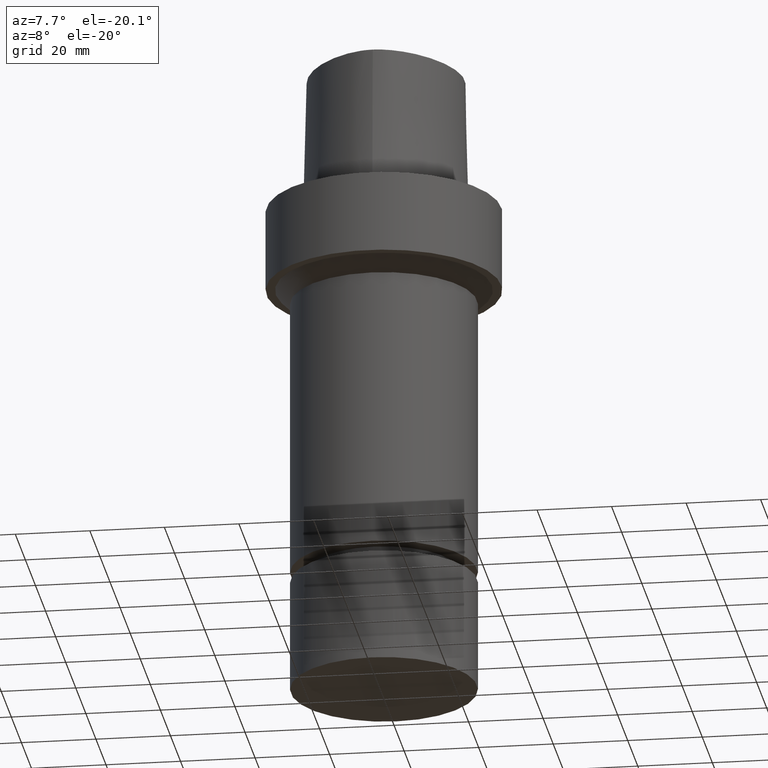
[diagram: clean part render]
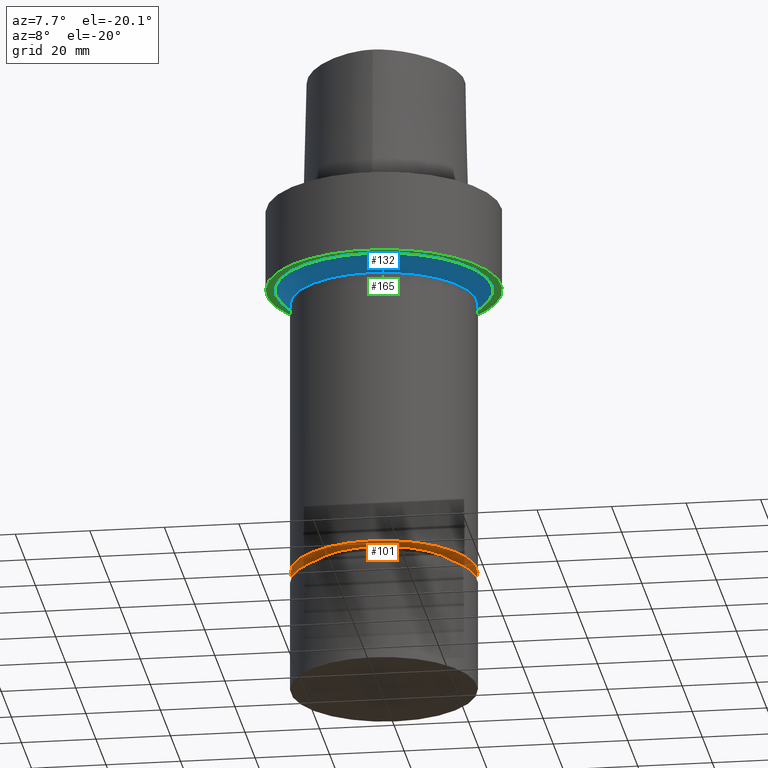
[diagram: same view with three faces highlighted in distinct colors, each labeled with its STEP entity id]
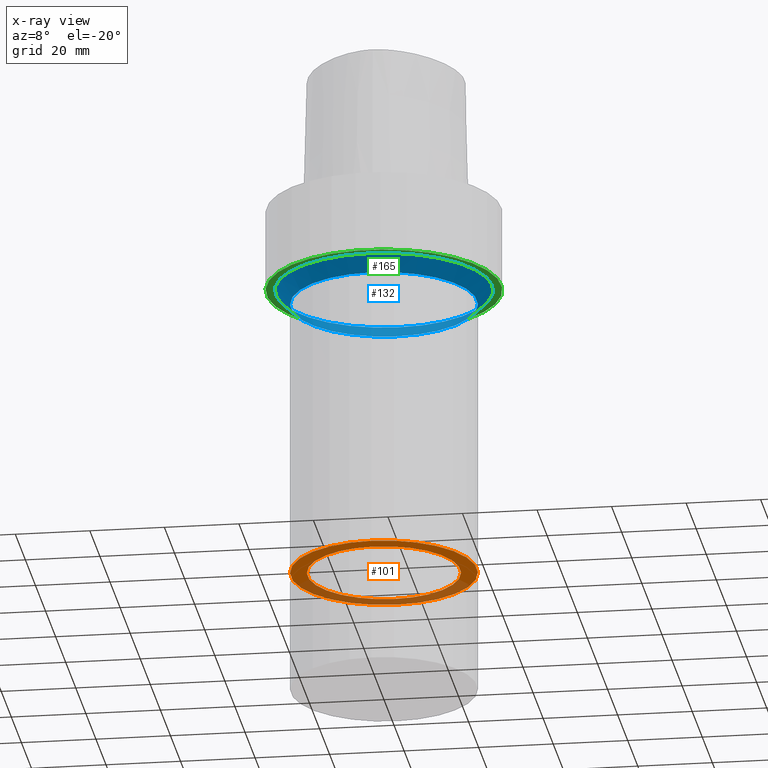
[diagram: x-ray of the same camera — body ghosted, the three highlighted faces saturated]
A machine part, auxiliary view with three faces highlighted in distinct colors.
The next image is the same camera in x-ray (body ghosted, the three faces saturated) — at least one of them is partly hidden behind the body in this view.
Their STEP definitions:

[orange] entity #101 — the highlighted planar face has unit normal (0, 0, -1).
#82=EDGE_CURVE('Unnamed[1]',#208,#208,#209,.T.);
#101=ADVANCED_FACE('Unnamed[1]',(#236,#237),#238,.T.);
#112=EDGE_CURVE('Unnamed[1]',#254,#254,#255,.T.);
#208=VERTEX_POINT('',#371);
#209=CIRCLE('',#372,20.4999999999911);
#236=FACE_BOUND('',#406,.T.);
#237=FACE_OUTER_BOUND('',#407,.T.);
#238=PLANE('',#408);
#254=VERTEX_POINT('',#444);
#255=CIRCLE('',#445,25.0);
#371=CARTESIAN_POINT('',(6.24570832399483E-015,20.4999999999911,-102.000157569404));
#372=AXIS2_PLACEMENT_3D('',#750,#751,#752);
#406=EDGE_LOOP('',(#782));
#407=EDGE_LOOP('',(#783));
#408=AXIS2_PLACEMENT_3D('',#784,#785,#786);
#444=CARTESIAN_POINT('',(6.2457083239948E-015,25.0,-102.000157569404));
#445=AXIS2_PLACEMENT_3D('',#799,#800,#801);
#750=CARTESIAN_POINT('',(6.24570832399483E-015,1.24914166479896E-014,-102.000157569404));
#751=DIRECTION('',(6.12323399573677E-017,1.22464679914735E-016,-1.0));
#752=DIRECTION('',(-1.23259516440783E-032,1.0,1.22464679914735E-016));
#782=ORIENTED_EDGE('',*,*,#82,.F.);
#783=ORIENTED_EDGE('',*,*,#112,.T.);
#784=CARTESIAN_POINT('',(6.24570832399481E-015,22.7499999999955,-102.000157569404));
#785=DIRECTION('',(6.12323399573677E-017,1.10651334686823E-013,-1.0));
#786=DIRECTION('',(-6.78026729501079E-030,1.0,1.10651334686823E-013));
#799=CARTESIAN_POINT('',(6.2457083239948E-015,1.24914166479896E-014,-102.000157569404));
#800=DIRECTION('',(6.12323399573676E-017,1.22464679914735E-016,-1.0));
#801=DIRECTION('',(-1.23259516440783E-032,1.0,1.22464679914735E-016));

[blue] entity #132 — the highlighted conical surface has half-angle 45 deg.
#110=EDGE_CURVE('Unnamed[1]',#251,#251,#252,.T.);
#117=EDGE_CURVE('Unnamed[1]',#262,#262,#263,.T.);
#132=ADVANCED_FACE('Unnamed[1]',(#281,#282),#283,.T.);
#251=VERTEX_POINT('',#440);
#252=CIRCLE('',#441,24.9999999999997);
#262=VERTEX_POINT('',#454);
#263=CIRCLE('',#455,28.9999999999997);
#281=FACE_BOUND('',#582,.T.);
#282=FACE_BOUND('',#583,.T.);
#283=CONICAL_SURFACE('',#584,26.9999999999997,0.785398163397449);
#440=CARTESIAN_POINT('',(1.59204083889159E-015,24.9999999999997,-26.0000000000006));
#441=AXIS2_PLACEMENT_3D('',#796,#797,#798);
#454=CARTESIAN_POINT('',(1.34711147906212E-015,28.9999999999997,-22.0000000000006));
#455=AXIS2_PLACEMENT_3D('',#808,#809,#810);
#582=EDGE_LOOP('',(#824));
#583=EDGE_LOOP('',(#825));
#584=AXIS2_PLACEMENT_3D('',#826,#827,#828);
#796=CARTESIAN_POINT('',(1.59204083889159E-015,3.18408167778319E-015,-26.0000000000006));
#797=DIRECTION('',(6.12323399573677E-017,1.22464679914735E-016,-1.0));
#798=DIRECTION('',(-1.23259516440783E-032,1.0,1.22464679914735E-016));
#808=CARTESIAN_POINT('',(1.34711147906212E-015,2.69422295812424E-015,-22.0000000000006));
#809=DIRECTION('',(6.12323399573677E-017,1.22464679914735E-016,-1.0));
#810=DIRECTION('',(-1.23259516440783E-032,1.0,1.22464679914735E-016));
#824=ORIENTED_EDGE('',*,*,#110,.F.);
#825=ORIENTED_EDGE('',*,*,#117,.T.);
#826=CARTESIAN_POINT('',(1.46957615897686E-015,2.93915231795372E-015,-24.0000000000006));
#827=DIRECTION('',(-6.12323399573677E-017,-1.22464679914735E-016,1.0));
#828=DIRECTION('',(-1.23259516440783E-032,1.0,1.22464679914735E-016));

[green] entity #165 — the highlighted planar face has unit normal (0, -0, -1).
#117=EDGE_CURVE('Unnamed[1]',#262,#262,#263,.T.);
#134=EDGE_CURVE('Unnamed[1]',#285,#285,#286,.T.);
#165=ADVANCED_FACE('Unnamed[1]',(#327,#328),#329,.T.);
#262=VERTEX_POINT('',#454);
#263=CIRCLE('',#455,28.9999999999997);
#285=VERTEX_POINT('',#587);
#286=CIRCLE('',#588,31.5);
#327=FACE_BOUND('',#725,.T.);
#328=FACE_OUTER_BOUND('',#726,.T.);
#329=PLANE('',#727);
#454=CARTESIAN_POINT('',(1.34711147906212E-015,28.9999999999997,-22.0000000000006));
#455=AXIS2_PLACEMENT_3D('',#808,#809,#810);
#587=CARTESIAN_POINT('',(1.34711147906212E-015,31.5,-22.0000000000006));
#588=AXIS2_PLACEMENT_3D('',#829,#830,#831);
#725=EDGE_LOOP('',(#875));
#726=EDGE_LOOP('',(#876));
#727=AXIS2_PLACEMENT_3D('',#877,#878,#879);
#808=CARTESIAN_POINT('',(1.34711147906212E-015,2.69422295812424E-015,-22.0000000000006));
#809=DIRECTION('',(6.12323399573677E-017,1.22464679914735E-016,-1.0));
#810=DIRECTION('',(-1.23259516440783E-032,1.0,1.22464679914735E-016));
#829=CARTESIAN_POINT('',(1.34711147906212E-015,2.69422295812425E-015,-22.0000000000006));
#830=DIRECTION('',(6.12323399573677E-017,1.22464679914735E-016,-1.0));
#831=DIRECTION('',(-1.23259516440783E-032,1.0,1.22464679914735E-016));
#875=ORIENTED_EDGE('',*,*,#117,.F.);
#876=ORIENTED_EDGE('',*,*,#134,.T.);
#877=CARTESIAN_POINT('',(1.34711147906212E-015,30.2499999999999,-22.0000000000006));
#878=DIRECTION('',(6.12323399573677E-017,-2.71970626312536E-015,-1.0));
#879=DIRECTION('',(1.61706825757105E-031,1.0,-2.71970626312536E-015));